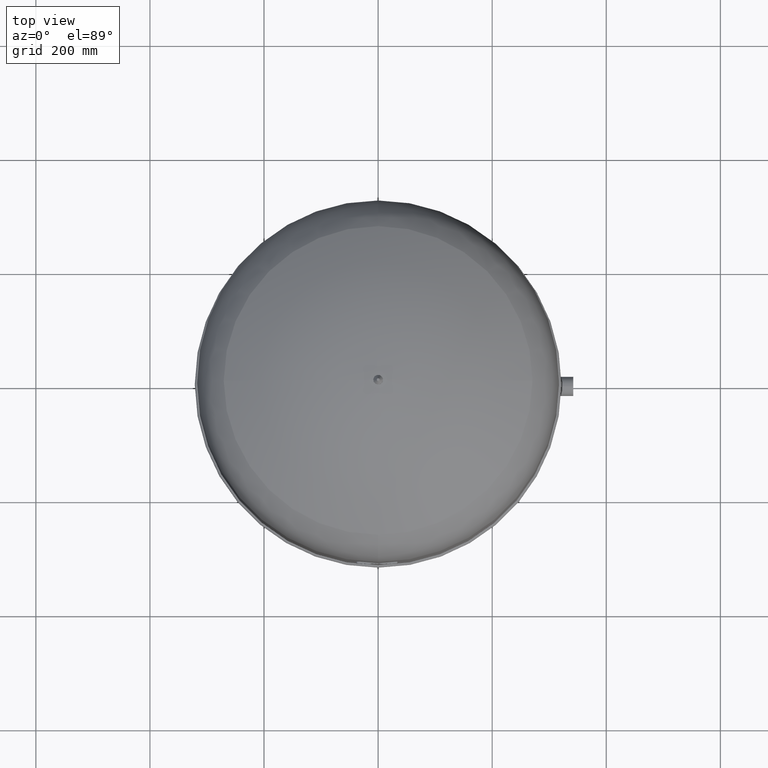
[diagram: clean part render]
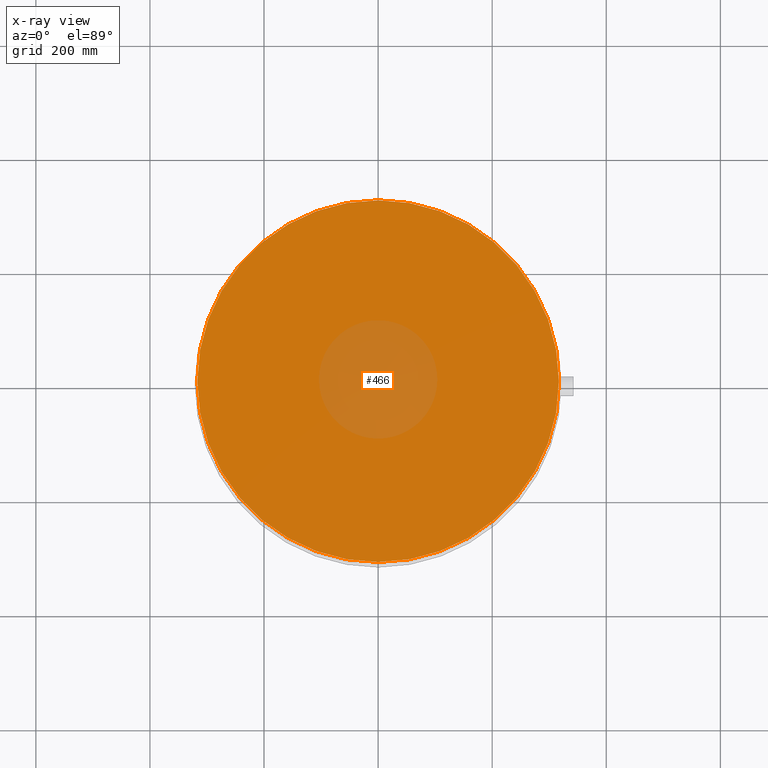
[diagram: x-ray — body ghosted, one internal face saturated and labeled with its STEP entity id]
A machine part, top view, then the same camera in x-ray: the body is ghosted and one INTERNAL B-rep face — a face not visible from any outside direction — is saturated and labeled: STEP entity #466.
In plain terms, the highlighted face is a freeform B-spline surface patch.
Its self-contained STEP definition (entity closure, byte-faithful):
#151=CARTESIAN_POINT('',(-317.0,-2.975892E-014,716.00000000000011));
#152=VERTEX_POINT('',#151);
#161=CARTESIAN_POINT('',(317.0,9.061104E-015,716.00000000000011));
#162=VERTEX_POINT('',#161);
#163=CARTESIAN_POINT('',(-1.558411E-014,-2.975892E-014,716.00000000000011));
#164=DIRECTION('',(0.0,0.0,1.0));
#165=DIRECTION('',(-1.0,0.0,0.0));
#166=AXIS2_PLACEMENT_3D('',#163,#164,#165);
#167=CIRCLE('',#166,317.0);
#168=EDGE_CURVE('',#152,#162,#167,.T.);
#447=CARTESIAN_POINT('',(-1.558411E-014,-2.975892E-014,716.00000000000011));
#448=DIRECTION('',(0.0,0.0,1.0));
#449=DIRECTION('',(-1.0,0.0,0.0));
#450=AXIS2_PLACEMENT_3D('',#447,#448,#449);
#451=CIRCLE('',#450,317.0);
#452=EDGE_CURVE('',#162,#152,#451,.T.);
#457=CARTESIAN_POINT('',(317.0,316.99999999999994,715.99999999999989));
#458=CARTESIAN_POINT('',(317.0,-317.00000000000006,716.0));
#459=CARTESIAN_POINT('',(-317.0,316.99999999999994,716.0));
#460=CARTESIAN_POINT('',(-317.0,-317.00000000000006,716.00000000000011));
#461=B_SPLINE_SURFACE_WITH_KNOTS('',1,1,((#457,#459),(#458,#460)),.UNSPECIFIED.,.F.,.F.,.U.,(2,2),(2,2),(0.0,634.0),(0.0,634.0),.UNSPECIFIED.);
#462=ORIENTED_EDGE('',*,*,#168,.F.);
#463=ORIENTED_EDGE('',*,*,#452,.F.);
#464=EDGE_LOOP('',(#462,#463));
#465=FACE_OUTER_BOUND('',#464,.T.);
#466=ADVANCED_FACE('',(#465),#461,.T.);